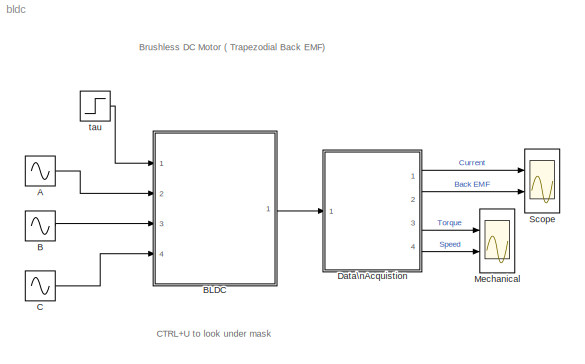
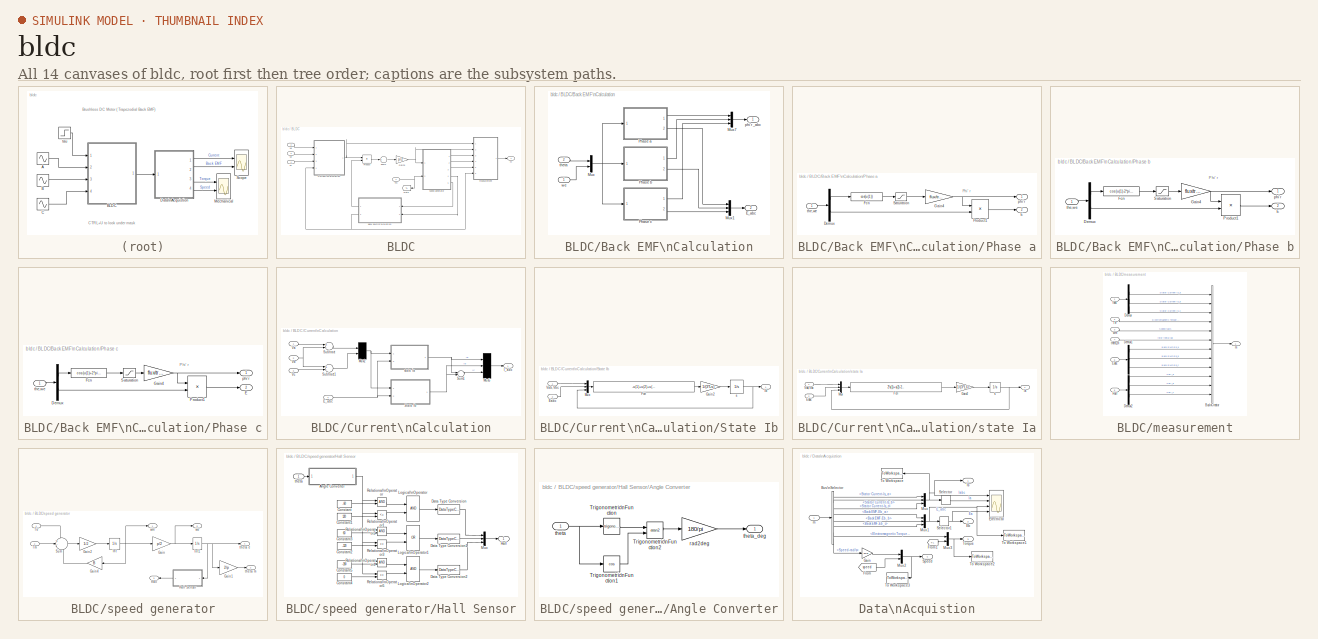
[diagram: thumbnail index - all 14 canvases of the model, root first then tree order]
MODEL bldc
KIND model
CONFIG InitFcn = Ts=10e-6;
BLOCK [Sin] A
  Amplitude = 220*sqrt(2)
  Bias = 0
  Frequency = 2*pi*50
  Offset = 0
  Phase = 0
  Ports = [0, 1]
  SampleTime = Ts
  Samples = 10
BLOCK [Sin] B
  Amplitude = 220*sqrt(2)
  Bias = 0
  Frequency = 2*pi*50
  Offset = 0
  Phase = -2*pi/3
  Ports = [0, 1]
  SampleTime = Ts
  Samples = 10
BLOCK [SubSystem] BLDC
  FunctionWithSeparateData = off
  MaskCallbackString = |||||
  MaskDescription = Brushless DC Motor inducing trapezoidal Back EMF
  MaskDisplay = fprintf('BLDC')
  MaskEnableString = on,on,on,on,on,on
  MaskHideContents = off
  MaskIconFrame = on
  MaskIconOpaque = off
  MaskIconRotate = none
  MaskIconUnits = autoscale
  MaskInitialization = trap=0.5;
  MaskPortRotate = default
  MaskPromptString = Resistance - Rs [ohms] :|Inductance - Ls [H] :|Flux - [wb]|Rotor Inertia - J [kg-m^2]|Friction Coefficient - B :|No: poles of Motor :
  MaskStyleString = edit,edit,edit,edit,edit,edit
  MaskTabNameString = ,,,,,
  MaskToolTipString = on,on,on,on,on,on
  MaskTunableValueString = on,on,on,on,on,on
  MaskType = Brushless DC Motor :
  MaskValueString = 1.43|9.4e-3|0.2158|1.5e-3|2e-3|4
  MaskVarAliasString = ,,,,,
  MaskVariables = Rs=@1;Ls=@2;flux=@3;J=@4;B=@5;p=@6;
  MaskVisibilityString = on,on,on,on,on,on
  MinAlgLoopOccurrences = off
  Opaque = off
  Ports = [4, 1]
  PropExecContextOutsideSubsystem = off
  RTWSystemCode = Auto
  RequestExecContextInheritance = off
BLOCK [SubSystem] BLDC/Back EMF\nCalculation
  FunctionWithSeparateData = off
  MaskHideContents = off
  MinAlgLoopOccurrences = off
  Opaque = off
  Ports = [2, 2]
  PropExecContextOutsideSubsystem = off
  RTWSystemCode = Auto
  RequestExecContextInheritance = off
BLOCK [Outport] BLDC/Back EMF\nCalculation/E_abc
  IconDisplay = Port number
  Port = 2
BLOCK [Mux] BLDC/Back EMF\nCalculation/Mux
  DisplayOption = bar
  Inputs = 2
  Ports = [2, 1]
BLOCK [Mux] BLDC/Back EMF\nCalculation/Mux1
  DisplayOption = bar
  Inputs = 3
  Ports = [3, 1]
BLOCK [Mux] BLDC/Back EMF\nCalculation/Mux7
  DisplayOption = bar
  Inputs = 3
  Ports = [3, 1]
BLOCK [SubSystem] BLDC/Back EMF\nCalculation/Phase a
  FunctionWithSeparateData = off
  MaskHideContents = off
  MinAlgLoopOccurrences = off
  Opaque = off
  Ports = [1, 2]
  PropExecContextOutsideSubsystem = off
  RTWSystemCode = Auto
  RequestExecContextInheritance = off
BLOCK [Demux] BLDC/Back EMF\nCalculation/Phase a/Demux
  Outputs = 2
  Ports = [1, 2]
BLOCK [Outport] BLDC/Back EMF\nCalculation/Phase a/E
  IconDisplay = Port number
  Port = 2
BLOCK [Fcn] BLDC/Back EMF\nCalculation/Phase a/Fcn
  Expr = cos(u(1))
BLOCK [Gain] BLDC/Back EMF\nCalculation/Phase a/Gain4
  Gain = flux/trap
BLOCK [Product] BLDC/Back EMF\nCalculation/Phase a/Product1
  InputSameDT = off
  Ports = [2, 1]
  RndMeth = Floor
BLOCK [Saturate] BLDC/Back EMF\nCalculation/Phase a/Saturation
  LowerLimit = -trap
  UpperLimit = trap
BLOCK [Outport] BLDC/Back EMF\nCalculation/Phase a/phi'r
  IconDisplay = Port number
BLOCK [Inport] BLDC/Back EMF\nCalculation/Phase a/the,we
  IconDisplay = Port number
BLOCK [SubSystem] BLDC/Back EMF\nCalculation/Phase b
  FunctionWithSeparateData = off
  MaskHideContents = off
  MinAlgLoopOccurrences = off
  Opaque = off
  Ports = [1, 2]
  PropExecContextOutsideSubsystem = off
  RTWSystemCode = Auto
  RequestExecContextInheritance = off
BLOCK [Demux] BLDC/Back EMF\nCalculation/Phase b/Demux
  Outputs = 2
  Ports = [1, 2]
BLOCK [Outport] BLDC/Back EMF\nCalculation/Phase b/E
  IconDisplay = Port number
  Port = 2
BLOCK [Fcn] BLDC/Back EMF\nCalculation/Phase b/Fcn
  Expr = cos(u(1)-2*pi/3)
BLOCK [Gain] BLDC/Back EMF\nCalculation/Phase b/Gain4
  Gain = flux/trap
BLOCK [Product] BLDC/Back EMF\nCalculation/Phase b/Product1
  InputSameDT = off
  Ports = [2, 1]
  RndMeth = Floor
BLOCK [Saturate] BLDC/Back EMF\nCalculation/Phase b/Saturation
  LowerLimit = -trap
  UpperLimit = trap
BLOCK [Outport] BLDC/Back EMF\nCalculation/Phase b/phi'r
  IconDisplay = Port number
BLOCK [Inport] BLDC/Back EMF\nCalculation/Phase b/the,we
  IconDisplay = Port number
BLOCK [SubSystem] BLDC/Back EMF\nCalculation/Phase c
  FunctionWithSeparateData = off
  MaskHideContents = off
  MinAlgLoopOccurrences = off
  Opaque = off
  Ports = [1, 2]
  PropExecContextOutsideSubsystem = off
  RTWSystemCode = Auto
  RequestExecContextInheritance = off
BLOCK [Demux] BLDC/Back EMF\nCalculation/Phase c/Demux
  Outputs = 2
  Ports = [1, 2]
BLOCK [Outport] BLDC/Back EMF\nCalculation/Phase c/E
  IconDisplay = Port number
  Port = 2
BLOCK [Fcn] BLDC/Back EMF\nCalculation/Phase c/Fcn
  Expr = cos(u(1)+2*pi/3)
BLOCK [Gain] BLDC/Back EMF\nCalculation/Phase c/Gain4
  Gain = flux/trap
BLOCK [Product] BLDC/Back EMF\nCalculation/Phase c/Product1
  InputSameDT = off
  Ports = [2, 1]
  RndMeth = Floor
BLOCK [Saturate] BLDC/Back EMF\nCalculation/Phase c/Saturation
  LowerLimit = -trap
  UpperLimit = trap
BLOCK [Outport] BLDC/Back EMF\nCalculation/Phase c/phi'r
  IconDisplay = Port number
BLOCK [Inport] BLDC/Back EMF\nCalculation/Phase c/the,we
  IconDisplay = Port number
BLOCK [Outport] BLDC/Back EMF\nCalculation/phi'r _abc
  IconDisplay = Port number
BLOCK [Inport] BLDC/Back EMF\nCalculation/theta
  IconDisplay = Port number
  Port = 2
BLOCK [Inport] BLDC/Back EMF\nCalculation/we
  IconDisplay = Port number
BLOCK [SubSystem] BLDC/Current\nCalculation
  FunctionWithSeparateData = off
  MaskHideContents = off
  MinAlgLoopOccurrences = off
  Opaque = off
  Ports = [4, 1]
  PropExecContextOutsideSubsystem = off
  RTWSystemCode = Auto
  RequestExecContextInheritance = off
BLOCK [Inport] BLDC/Current\nCalculation/E_abc
  IconDisplay = Port number
  Port = 4
BLOCK [Outport] BLDC/Current\nCalculation/I_abc
  IconDisplay = Port number
BLOCK [Mux] BLDC/Current\nCalculation/Mux2
  DisplayOption = signals
  Inputs = 2
  Ports = [2, 1]
BLOCK [Mux] BLDC/Current\nCalculation/Mux5
  DisplayOption = signals
  Inputs = 3
  Ports = [3, 1]
BLOCK [SubSystem] BLDC/Current\nCalculation/State Ib
  FunctionWithSeparateData = off
  MaskHideContents = off
  MinAlgLoopOccurrences = off
  Opaque = off
  Ports = [2, 1]
  PropExecContextOutsideSubsystem = off
  RTWSystemCode = Auto
  RequestExecContextInheritance = off
BLOCK [Inport] BLDC/Current\nCalculation/State Ib/Eabc
  IconDisplay = Port number
  Port = 2
BLOCK [Fcn] BLDC/Current\nCalculation/State Ib/Fcn
  Expr = -u(1)+u(2)+u(3)-2*u(4)+u(5)-3*Rs*u(6)
BLOCK [Gain] BLDC/Current\nCalculation/State Ib/Gain2
  Gain = 1/(3*Ls)
BLOCK [Outport] BLDC/Current\nCalculation/State Ib/Ib
  IconDisplay = Port number
BLOCK [Mux] BLDC/Current\nCalculation/State Ib/Mux
  DisplayOption = bar
  Inputs = 3
  Ports = [3, 1]
BLOCK [Inport] BLDC/Current\nCalculation/State Ib/Vab,Vbc
  IconDisplay = Port number
BLOCK [Integrator] BLDC/Current\nCalculation/State Ib/s 
  Ports = [1, 1]
BLOCK [Sum] BLDC/Current\nCalculation/Subtract
  InputSameDT = off
  Inputs = +-
  OutDataType = fixdt(1, 16)
  OutDataTypeMode = Inherit via internal rule
  OutDataTypeStr = Inherit: Inherit via internal rule
  OutScaling = 2^-10
  Ports = [2, 1]
  SaturateOnIntegerOverflow = off
BLOCK [Sum] BLDC/Current\nCalculation/Subtract1
  InputSameDT = off
  Inputs = +-
  OutDataType = fixdt(1, 16)
  OutDataTypeMode = Inherit via internal rule
  OutDataTypeStr = Inherit: Inherit via internal rule
  OutScaling = 2^-10
  Ports = [2, 1]
  SaturateOnIntegerOverflow = off
BLOCK [Sum] BLDC/Current\nCalculation/Sum1
  InputSameDT = off
  Inputs = --
  OutDataTypeMode = Inherit via internal rule
  OutDataTypeStr = Inherit: Inherit via internal rule
  Ports = [2, 1]
BLOCK [Inport] BLDC/Current\nCalculation/Va
  IconDisplay = Port number
BLOCK [Inport] BLDC/Current\nCalculation/Vb
  IconDisplay = Port number
  Port = 2
BLOCK [Inport] BLDC/Current\nCalculation/Vc
  IconDisplay = Port number
  Port = 3
BLOCK [SubSystem] BLDC/Current\nCalculation/state Ia
  FunctionWithSeparateData = off
  MaskHideContents = off
  MinAlgLoopOccurrences = off
  Opaque = off
  Ports = [2, 1]
  PropExecContextOutsideSubsystem = off
  RTWSystemCode = Auto
  RequestExecContextInheritance = off
BLOCK [Inport] BLDC/Current\nCalculation/state Ia/Eabc
  IconDisplay = Port number
  Port = 2
BLOCK [Fcn] BLDC/Current\nCalculation/state Ia/Fcn
  Expr = 2*u(1)+u(2)-2*u(3)+u(4)+u(5)-3*Rs*u(6)
BLOCK [Gain] BLDC/Current\nCalculation/state Ia/Gain2
  Gain = 1/(3*Ls)
BLOCK [Outport] BLDC/Current\nCalculation/state Ia/Ia
  IconDisplay = Port number
BLOCK [Mux] BLDC/Current\nCalculation/state Ia/Mux
  DisplayOption = bar
  Inputs = 3
  Ports = [3, 1]
BLOCK [Inport] BLDC/Current\nCalculation/state Ia/Vab,Vbc
  IconDisplay = Port number
BLOCK [Integrator] BLDC/Current\nCalculation/state Ia/s 
  Ports = [1, 1]
BLOCK [Gain] BLDC/Gain3
  Gain = p/2
BLOCK [Goto] BLDC/Goto
  GotoTag = TL
  TagVisibility = global
BLOCK [Product] BLDC/Product
  InputSameDT = off
  Ports = [2, 1]
  RndMeth = Floor
BLOCK [Sum] BLDC/Sum2
  InputSameDT = off
  Inputs = +
  OutDataTypeMode = Inherit via internal rule
  OutDataTypeStr = Inherit: Inherit via internal rule
  Ports = [1, 1]
BLOCK [Inport] BLDC/Tm
  IconDisplay = Port number
BLOCK [Inport] BLDC/Va
  IconDisplay = Port number
  Port = 2
BLOCK [Inport] BLDC/Vb
  IconDisplay = Port number
  Port = 3
BLOCK [Inport] BLDC/Vc
  IconDisplay = Port number
  Port = 4
BLOCK [Outport] BLDC/m
  IconDisplay = Port number
BLOCK [SubSystem] BLDC/measurement
  FunctionWithSeparateData = off
  MaskHideContents = off
  MinAlgLoopOccurrences = off
  Opaque = off
  Ports = [6, 1]
  PropExecContextOutsideSubsystem = off
  RTWSystemCode = Auto
  RequestExecContextInheritance = off
BLOCK [BusCreator] BLDC/measurement/Bus\nCreator
  DisplayOption = bar
  Inputs = 12
  Ports = [12, 1]
BLOCK [Demux] BLDC/measurement/Demux
  DisplayOption = bar
  Outputs = 3
  Ports = [1, 3]
BLOCK [Demux] BLDC/measurement/Demux1
  DisplayOption = bar
  Outputs = 3
  Ports = [1, 3]
BLOCK [Demux] BLDC/measurement/Demux2
  DisplayOption = bar
  Outputs = 3
  Ports = [1, 3]
BLOCK [Inport] BLDC/measurement/Eabc
  IconDisplay = Port number
  OutDataType = fixdt(1, 16)
  OutScaling = 2^0
  Port = 6
BLOCK [Inport] BLDC/measurement/Hall
  IconDisplay = Port number
  OutDataType = fixdt(1, 16)
  OutScaling = 2^0
  Port = 5
BLOCK [Inport] BLDC/measurement/Iabc
  IconDisplay = Port number
  OutDataType = fixdt(1, 16)
  OutScaling = 2^0
BLOCK [Inport] BLDC/measurement/Te
  IconDisplay = Port number
  OutDataType = fixdt(1, 16)
  OutScaling = 2^0
  Port = 2
BLOCK [Outport] BLDC/measurement/m
  IconDisplay = Port number
  OutDataType = fixdt(1, 16)
  OutScaling = 2^0
BLOCK [Inport] BLDC/measurement/theta_m
  IconDisplay = Port number
  OutDataType = fixdt(1, 16)
  OutScaling = 2^0
  Port = 4
BLOCK [Inport] BLDC/measurement/wm
  IconDisplay = Port number
  OutDataType = fixdt(1, 16)
  OutScaling = 2^0
  Port = 3
BLOCK [SubSystem] BLDC/speed generator
  FunctionWithSeparateData = off
  MaskHideContents = off
  MinAlgLoopOccurrences = off
  Opaque = off
  Ports = [2, 5]
  PropExecContextOutsideSubsystem = off
  RTWSystemCode = Auto
  RequestExecContextInheritance = off
BLOCK [Gain] BLDC/speed generator/Gain
  Gain = p/2
BLOCK [Gain] BLDC/speed generator/Gain1
  Gain = 2/p
BLOCK [Gain] BLDC/speed generator/Gain2
  Gain = 1/J
BLOCK [Gain] BLDC/speed generator/Gain4
  Gain = B
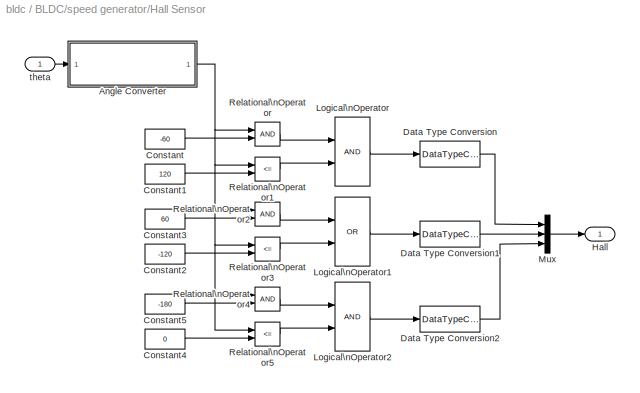
BLOCK [SubSystem] BLDC/speed generator/Hall Sensor
  FunctionWithSeparateData = off
  MaskHideContents = off
  MinAlgLoopOccurrences = off
  Opaque = off
  Ports = [1, 1]
  PropExecContextOutsideSubsystem = off
  RTWSystemCode = Auto
  RequestExecContextInheritance = off
BLOCK [SubSystem] BLDC/speed generator/Hall Sensor/Angle Converter
  FunctionWithSeparateData = off
  MaskHideContents = off
  MinAlgLoopOccurrences = off
  Opaque = off
  Ports = [1, 1]
  PropExecContextOutsideSubsystem = off
  RTWSystemCode = Auto
  RequestExecContextInheritance = off
BLOCK [Trigonometry] BLDC/speed generator/Hall Sensor/Angle Converter/Trigonometric\nFunction
  Ports = [1, 1]
BLOCK [Trigonometry] BLDC/speed generator/Hall Sensor/Angle Converter/Trigonometric\nFunction1
  Operator = cos
  Ports = [1, 1]
BLOCK [Trigonometry] BLDC/speed generator/Hall Sensor/Angle Converter/Trigonometric\nFunction2
  Operator = atan2
  Ports = [2, 1]
BLOCK [Gain] BLDC/speed generator/Hall Sensor/Angle Converter/rad2deg
  Gain = 180/pi
  OutDataType = fixdt(1, 16)
  OutDataTypeMode = Inherit via internal rule
  OutDataTypeStr = Inherit: Inherit via internal rule
  OutScaling = 2^0
  ParamDataTypeStr = Inherit: Inherit via internal rule
  ParameterDataType = fixdt(1, 16)
  ParameterDataTypeMode = Inherit via internal rule
  ParameterScaling = 2^0
  SaturateOnIntegerOverflow = off
BLOCK [Inport] BLDC/speed generator/Hall Sensor/Angle Converter/theta
  IconDisplay = Port number
  OutDataType = fixdt(1, 16)
  OutScaling = 2^0
BLOCK [Outport] BLDC/speed generator/Hall Sensor/Angle Converter/theta_deg
  IconDisplay = Port number
  OutDataType = fixdt(1, 16)
  OutScaling = 2^0
BLOCK [Constant] BLDC/speed generator/Hall Sensor/Constant
  OutDataType = fixdt(1, 16)
  OutScaling = 2^0
  Value = -60
BLOCK [Constant] BLDC/speed generator/Hall Sensor/Constant1
  OutDataType = fixdt(1, 16)
  OutScaling = 2^0
  Value = 120
BLOCK [Constant] BLDC/speed generator/Hall Sensor/Constant2
  OutDataType = fixdt(1, 16)
  OutScaling = 2^0
  Value = -120
BLOCK [Constant] BLDC/speed generator/Hall Sensor/Constant3
  OutDataType = fixdt(1, 16)
  OutScaling = 2^0
  Value = 60
BLOCK [Constant] BLDC/speed generator/Hall Sensor/Constant4
  OutDataType = fixdt(1, 16)
  OutScaling = 2^0
  Value = 0
BLOCK [Constant] BLDC/speed generator/Hall Sensor/Constant5
  OutDataType = fixdt(1, 16)
  OutScaling = 2^0
  Value = -180
BLOCK [DataTypeConversion] BLDC/speed generator/Hall Sensor/Data Type Conversion
  OutDataType = fixdt(1, 16)
  OutScaling = 2^0
  RndMeth = Floor
  SaturateOnIntegerOverflow = off
BLOCK [DataTypeConversion] BLDC/speed generator/Hall Sensor/Data Type Conversion1
  OutDataType = fixdt(1, 16)
  OutScaling = 2^0
  RndMeth = Floor
  SaturateOnIntegerOverflow = off
BLOCK [DataTypeConversion] BLDC/speed generator/Hall Sensor/Data Type Conversion2
  OutDataType = fixdt(1, 16)
  OutScaling = 2^0
  RndMeth = Floor
  SaturateOnIntegerOverflow = off
BLOCK [Outport] BLDC/speed generator/Hall Sensor/Hall
  IconDisplay = Port number
  OutDataType = fixdt(1, 16)
  OutScaling = 2^0
BLOCK [Logic] BLDC/speed generator/Hall Sensor/Logical\nOperator
  AllPortsSameDT = off
  LogicDataType = fixdt(0, 8)
  OutDataTypeMode = boolean
  OutDataTypeStr = boolean
  Ports = [2, 1]
BLOCK [Logic] BLDC/speed generator/Hall Sensor/Logical\nOperator1
  AllPortsSameDT = off
  LogicDataType = fixdt(0, 8)
  Operator = OR
  OutDataTypeMode = boolean
  OutDataTypeStr = boolean
  Ports = [2, 1]
BLOCK [Logic] BLDC/speed generator/Hall Sensor/Logical\nOperator2
  AllPortsSameDT = off
  LogicDataType = fixdt(0, 8)
  OutDataTypeMode = boolean
  OutDataTypeStr = boolean
  Ports = [2, 1]
BLOCK [Mux] BLDC/speed generator/Hall Sensor/Mux
  DisplayOption = bar
  Inputs = 3
  Ports = [3, 1]
BLOCK [RelationalOperator] BLDC/speed generator/Hall Sensor/Relational\nOperator
  InputSameDT = off
  LogicDataType = fixdt(0, 8)
  LogicOutDataTypeMode = boolean
  OutDataTypeStr = boolean
BLOCK [RelationalOperator] BLDC/speed generator/Hall Sensor/Relational\nOperator1
  InputSameDT = off
  LogicDataType = fixdt(0, 8)
  LogicOutDataTypeMode = boolean
  Operator = <=
  OutDataTypeStr = boolean
BLOCK [RelationalOperator] BLDC/speed generator/Hall Sensor/Relational\nOperator2
  InputSameDT = off
  LogicDataType = fixdt(0, 8)
  LogicOutDataTypeMode = boolean
  OutDataTypeStr = boolean
BLOCK [RelationalOperator] BLDC/speed generator/Hall Sensor/Relational\nOperator3
  InputSameDT = off
  LogicDataType = fixdt(0, 8)
  LogicOutDataTypeMode = boolean
  Operator = <=
  OutDataTypeStr = boolean
BLOCK [RelationalOperator] BLDC/speed generator/Hall Sensor/Relational\nOperator4
  InputSameDT = off
  LogicDataType = fixdt(0, 8)
  LogicOutDataTypeMode = boolean
  OutDataTypeStr = boolean
BLOCK [RelationalOperator] BLDC/speed generator/Hall Sensor/Relational\nOperator5
  InputSameDT = off
  LogicDataType = fixdt(0, 8)
  LogicOutDataTypeMode = boolean
  Operator = <=
  OutDataTypeStr = boolean
BLOCK [Inport] BLDC/speed generator/Hall Sensor/theta
  IconDisplay = Port number
  OutDataType = fixdt(1, 16)
  OutScaling = 2^0
BLOCK [Integrator] BLDC/speed generator/Int
  Ports = [1, 1]
BLOCK [Integrator] BLDC/speed generator/Int1
  Ports = [1, 1]
BLOCK [Sum] BLDC/speed generator/Sum
  IconShape = round
  Inputs = +--
  Ports = [3, 1]
BLOCK [Inport] BLDC/speed generator/Te
  IconDisplay = Port number
BLOCK [Inport] BLDC/speed generator/Tm
  IconDisplay = Port number
  Port = 2
BLOCK [Outport] BLDC/speed generator/hall
  IconDisplay = Port number
  Port = 3
BLOCK [Outport] BLDC/speed generator/theta e
  IconDisplay = Port number
  Port = 4
BLOCK [Outport] BLDC/speed generator/theta m
  IconDisplay = Port number
  Port = 2
BLOCK [Outport] BLDC/speed generator/we
  IconDisplay = Port number
  Port = 5
BLOCK [Outport] BLDC/speed generator/wm
  IconDisplay = Port number
BLOCK [Sin] C
  Amplitude = 220*sqrt(2)
  Bias = 0
  Frequency = 2*pi*50
  Offset = 0
  Phase = 2*pi/3
  Ports = [0, 1]
  SampleTime = Ts
  Samples = 10
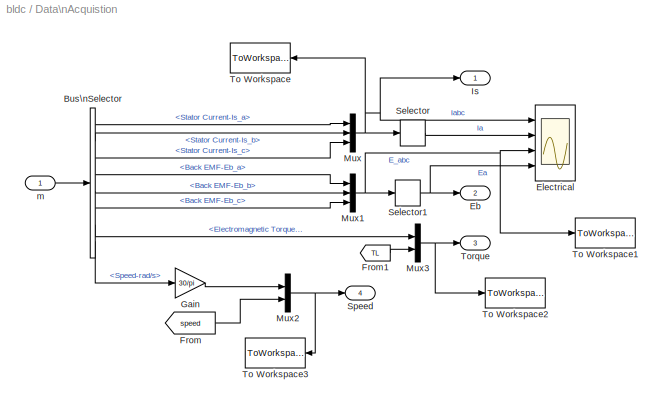
BLOCK [SubSystem] Data\nAcquistion
  FunctionWithSeparateData = off
  MaskHideContents = off
  MinAlgLoopOccurrences = off
  Opaque = off
  Ports = [1, 4]
  PropExecContextOutsideSubsystem = off
  RTWSystemCode = Auto
  RequestExecContextInheritance = off
BLOCK [BusSelector] Data\nAcquistion/Bus\nSelector
  OutputSignals = Stator Current-Is_a,Stator Current-Is_b,Stator Current-Is_c,Back EMF-Eb_a,Back EMF-Eb_b,Back EMF-Eb_c,Electromagnetic Torque-Nm,Speed-rad/s
  Ports = [1, 8]
BLOCK [Outport] Data\nAcquistion/Eb
  IconDisplay = Port number
  Port = 2
BLOCK [Scope] Data\nAcquistion/Electrical
  DataFormat = StructureWithTime
  Floating = off
  LimitDataPoints = off
  NumInputPorts = 4
  Ports = [4]
  SampleTime = 0
  SaveName = ScopeData3
  TimeRange = 1
  YMax = 40~30~100~100
  YMin = -40~-20~-100~-100
  ZoomMode = yonly
BLOCK [From] Data\nAcquistion/From
  GotoTag = speed
BLOCK [From] Data\nAcquistion/From1
  GotoTag = TL
  TagVisibility = global
BLOCK [Gain] Data\nAcquistion/Gain
  Gain = 30/pi
  OutDataType = fixdt(1, 16)
  OutDataTypeMode = Inherit via internal rule
  OutDataTypeStr = Inherit: Inherit via internal rule
  OutScaling = 2^0
  ParamDataTypeStr = Inherit: Inherit via internal rule
  ParameterDataType = fixdt(1, 16)
  ParameterDataTypeMode = Inherit via internal rule
  ParameterScaling = 2^0
  SaturateOnIntegerOverflow = off
BLOCK [Outport] Data\nAcquistion/Is
  IconDisplay = Port number
BLOCK [Mux] Data\nAcquistion/Mux
  DisplayOption = bar
  Inputs = 3
  Ports = [3, 1]
BLOCK [Mux] Data\nAcquistion/Mux1
  DisplayOption = bar
  Inputs = 3
  Ports = [3, 1]
BLOCK [Mux] Data\nAcquistion/Mux2
  DisplayOption = bar
  Inputs = 2
  Ports = [2, 1]
BLOCK [Mux] Data\nAcquistion/Mux3
  DisplayOption = bar
  Inputs = 2
  Ports = [2, 1]
BLOCK [Selector] Data\nAcquistion/Selector
  IndexOptions = Index vector (dialog)
  Indices = [1 ]
  InputPortWidth = 3
  OutputSizes = 1
  Ports = [1, 1]
BLOCK [Selector] Data\nAcquistion/Selector1
  IndexOptions = Index vector (dialog)
  Indices = [1 ]
  InputPortWidth = 3
  OutputSizes = 1
  Ports = [1, 1]
BLOCK [Outport] Data\nAcquistion/Speed
  IconDisplay = Port number
  Port = 4
BLOCK [ToWorkspace] Data\nAcquistion/To Workspace
  MaxDataPoints = inf
  SampleTime = Ts
  SaveFormat = Array
  VariableName = Iabc_pi
BLOCK [ToWorkspace] Data\nAcquistion/To Workspace1
  MaxDataPoints = inf
  SampleTime = Ts
  SaveFormat = Array
  VariableName = Eabc_pi
BLOCK [ToWorkspace] Data\nAcquistion/To Workspace2
  MaxDataPoints = inf
  SampleTime = Ts
  SaveFormat = Array
  VariableName = Te_pi
BLOCK [ToWorkspace] Data\nAcquistion/To Workspace3
  MaxDataPoints = inf
  SampleTime = Ts
  SaveFormat = Array
  VariableName = N_pi
BLOCK [Outport] Data\nAcquistion/Torque
  IconDisplay = Port number
  Port = 3
BLOCK [Inport] Data\nAcquistion/m
  IconDisplay = Port number
BLOCK [Scope] Mechanical
  DataFormat = StructureWithTime
  Floating = off
  LimitDataPoints = off
  NumInputPorts = 2
  Ports = [2]
  SampleTime = 0
  SaveName = ScopeData1
  TimeRange = 1
  YMax = 50~2000
  YMin = -20~0
  ZoomMode = yonly
BLOCK [Scope] Scope
  DataFormat = StructureWithTime
  Floating = off
  LimitDataPoints = off
  NumInputPorts = 2
  Ports = [2]
  SampleTime = 0
  TimeRange = 1
  YMax = 150~100
  YMin = -100~-100
  ZoomMode = xonly
BLOCK [Step] tau
  After = 10
  SampleTime = 0
  Time = 0.5
ANNOTATION (root): Brushless DC Motor ( Trapezodial Back EMF)
ANNOTATION (root): CTRL+U to look under mask
ANNOTATION BLDC/Back EMF\nCalculation/Phase a: Phi' r
ANNOTATION BLDC/Back EMF\nCalculation/Phase b: Phi' r
ANNOTATION BLDC/Back EMF\nCalculation/Phase c: Phi' r
LINE A:1 -> BLDC:2
LINE B:1 -> BLDC:3
LINE BLDC/Back EMF\nCalculation/Mux1:1 -> BLDC/Back EMF\nCalculation/E_abc:1
LINE BLDC/Back EMF\nCalculation/Mux7:1 -> BLDC/Back EMF\nCalculation/phi'r _abc:1
NET BLDC/Back EMF\nCalculation/Mux:1 -> BLDC/Back EMF\nCalculation/Phase a:1, BLDC/Back EMF\nCalculation/Phase b:1, BLDC/Back EMF\nCalculation/Phase c:1
LINE BLDC/Back EMF\nCalculation/Phase a/Demux:1 -> BLDC/Back EMF\nCalculation/Phase a/Fcn:1
LINE BLDC/Back EMF\nCalculation/Phase a/Demux:2 -> BLDC/Back EMF\nCalculation/Phase a/Product1:2
LINE BLDC/Back EMF\nCalculation/Phase a/Fcn:1 -> BLDC/Back EMF\nCalculation/Phase a/Saturation:1
NET BLDC/Back EMF\nCalculation/Phase a/Gain4:1 -> BLDC/Back EMF\nCalculation/Phase a/Product1:1, BLDC/Back EMF\nCalculation/Phase a/phi'r:1
LINE BLDC/Back EMF\nCalculation/Phase a/Product1:1 -> BLDC/Back EMF\nCalculation/Phase a/E:1
LINE BLDC/Back EMF\nCalculation/Phase a/Saturation:1 -> BLDC/Back EMF\nCalculation/Phase a/Gain4:1
LINE BLDC/Back EMF\nCalculation/Phase a/the,we:1 -> BLDC/Back EMF\nCalculation/Phase a/Demux:1
LINE BLDC/Back EMF\nCalculation/Phase a:1 -> BLDC/Back EMF\nCalculation/Mux7:1
LINE BLDC/Back EMF\nCalculation/Phase a:2 -> BLDC/Back EMF\nCalculation/Mux1:1
LINE BLDC/Back EMF\nCalculation/Phase b/Demux:1 -> BLDC/Back EMF\nCalculation/Phase b/Fcn:1
LINE BLDC/Back EMF\nCalculation/Phase b/Demux:2 -> BLDC/Back EMF\nCalculation/Phase b/Product1:2
LINE BLDC/Back EMF\nCalculation/Phase b/Fcn:1 -> BLDC/Back EMF\nCalculation/Phase b/Saturation:1
NET BLDC/Back EMF\nCalculation/Phase b/Gain4:1 -> BLDC/Back EMF\nCalculation/Phase b/Product1:1, BLDC/Back EMF\nCalculation/Phase b/phi'r:1
LINE BLDC/Back EMF\nCalculation/Phase b/Product1:1 -> BLDC/Back EMF\nCalculation/Phase b/E:1
LINE BLDC/Back EMF\nCalculation/Phase b/Saturation:1 -> BLDC/Back EMF\nCalculation/Phase b/Gain4:1
LINE BLDC/Back EMF\nCalculation/Phase b/the,we:1 -> BLDC/Back EMF\nCalculation/Phase b/Demux:1
LINE BLDC/Back EMF\nCalculation/Phase b:1 -> BLDC/Back EMF\nCalculation/Mux7:2
LINE BLDC/Back EMF\nCalculation/Phase b:2 -> BLDC/Back EMF\nCalculation/Mux1:2
LINE BLDC/Back EMF\nCalculation/Phase c/Demux:1 -> BLDC/Back EMF\nCalculation/Phase c/Fcn:1
LINE BLDC/Back EMF\nCalculation/Phase c/Demux:2 -> BLDC/Back EMF\nCalculation/Phase c/Product1:2
LINE BLDC/Back EMF\nCalculation/Phase c/Fcn:1 -> BLDC/Back EMF\nCalculation/Phase c/Saturation:1
NET BLDC/Back EMF\nCalculation/Phase c/Gain4:1 -> BLDC/Back EMF\nCalculation/Phase c/Product1:1, BLDC/Back EMF\nCalculation/Phase c/phi'r:1
LINE BLDC/Back EMF\nCalculation/Phase c/Product1:1 -> BLDC/Back EMF\nCalculation/Phase c/E:1
LINE BLDC/Back EMF\nCalculation/Phase c/Saturation:1 -> BLDC/Back EMF\nCalculation/Phase c/Gain4:1
LINE BLDC/Back EMF\nCalculation/Phase c/the,we:1 -> BLDC/Back EMF\nCalculation/Phase c/Demux:1
LINE BLDC/Back EMF\nCalculation/Phase c:1 -> BLDC/Back EMF\nCalculation/Mux7:3
LINE BLDC/Back EMF\nCalculation/Phase c:2 -> BLDC/Back EMF\nCalculation/Mux1:3
LINE BLDC/Back EMF\nCalculation/theta:1 -> BLDC/Back EMF\nCalculation/Mux:1
LINE BLDC/Back EMF\nCalculation/we:1 -> BLDC/Back EMF\nCalculation/Mux:2
LINE BLDC/Back EMF\nCalculation:1 -> BLDC/Product:2
NET BLDC/Back EMF\nCalculation:2 -> BLDC/Current\nCalculation:4, BLDC/measurement:6
NET BLDC/Current\nCalculation/E_abc:1 -> BLDC/Current\nCalculation/State Ib:2, BLDC/Current\nCalculation/state Ia:2
NET BLDC/Current\nCalculation/Mux2:1 -> BLDC/Current\nCalculation/State Ib:1, BLDC/Current\nCalculation/state Ia:1
LINE BLDC/Current\nCalculation/Mux5:1 -> BLDC/Current\nCalculation/I_abc:1
LINE BLDC/Current\nCalculation/State Ib/Eabc:1 -> BLDC/Current\nCalculation/State Ib/Mux:2
LINE BLDC/Current\nCalculation/State Ib/Fcn:1 -> BLDC/Current\nCalculation/State Ib/Gain2:1
LINE BLDC/Current\nCalculation/State Ib/Gain2:1 -> BLDC/Current\nCalculation/State Ib/s :1
LINE BLDC/Current\nCalculation/State Ib/Mux:1 -> BLDC/Current\nCalculation/State Ib/Fcn:1
LINE BLDC/Current\nCalculation/State Ib/Vab,Vbc:1 -> BLDC/Current\nCalculation/State Ib/Mux:1
NET BLDC/Current\nCalculation/State Ib/s :1 -> BLDC/Current\nCalculation/State Ib/Ib:1, BLDC/Current\nCalculation/State Ib/Mux:3
NET BLDC/Current\nCalculation/State Ib:1 -> BLDC/Current\nCalculation/Mux5:2, BLDC/Current\nCalculation/Sum1:2
LINE BLDC/Current\nCalculation/Subtract1:1 -> BLDC/Current\nCalculation/Mux2:2
LINE BLDC/Current\nCalculation/Subtract:1 -> BLDC/Current\nCalculation/Mux2:1
LINE BLDC/Current\nCalculation/Sum1:1 -> BLDC/Current\nCalculation/Mux5:3
LINE BLDC/Current\nCalculation/Va:1 -> BLDC/Current\nCalculation/Subtract:1
NET BLDC/Current\nCalculation/Vb:1 -> BLDC/Current\nCalculation/Subtract1:1, BLDC/Current\nCalculation/Subtract:2
LINE BLDC/Current\nCalculation/Vc:1 -> BLDC/Current\nCalculation/Subtract1:2
LINE BLDC/Current\nCalculation/state Ia/Eabc:1 -> BLDC/Current\nCalculation/state Ia/Mux:2
LINE BLDC/Current\nCalculation/state Ia/Fcn:1 -> BLDC/Current\nCalculation/state Ia/Gain2:1
LINE BLDC/Current\nCalculation/state Ia/Gain2:1 -> BLDC/Current\nCalculation/state Ia/s :1
LINE BLDC/Current\nCalculation/state Ia/Mux:1 -> BLDC/Current\nCalculation/state Ia/Fcn:1
LINE BLDC/Current\nCalculation/state Ia/Vab,Vbc:1 -> BLDC/Current\nCalculation/state Ia/Mux:1
NET BLDC/Current\nCalculation/state Ia/s :1 -> BLDC/Current\nCalculation/state Ia/Ia:1, BLDC/Current\nCalculation/state Ia/Mux:3
NET BLDC/Current\nCalculation/state Ia:1 -> BLDC/Current\nCalculation/Mux5:1, BLDC/Current\nCalculation/Sum1:1
NET BLDC/Current\nCalculation:1 -> BLDC/Product:1, BLDC/measurement:1
NET BLDC/Gain3:1 -> BLDC/measurement:2, BLDC/speed generator:1
LINE BLDC/Product:1 -> BLDC/Sum2:1
LINE BLDC/Sum2:1 -> BLDC/Gain3:1
NET BLDC/Tm:1 -> BLDC/Goto:1, BLDC/speed generator:2
LINE BLDC/Va:1 -> BLDC/Current\nCalculation:1
LINE BLDC/Vb:1 -> BLDC/Current\nCalculation:2
LINE BLDC/Vc:1 -> BLDC/Current\nCalculation:3
LINE BLDC/measurement/Bus\nCreator:1 -> BLDC/measurement/m:1
LINE BLDC/measurement/Demux1:1 -> BLDC/measurement/Bus\nCreator:7
LINE BLDC/measurement/Demux1:2 -> BLDC/measurement/Bus\nCreator:8
LINE BLDC/measurement/Demux1:3 -> BLDC/measurement/Bus\nCreator:9
LINE BLDC/measurement/Demux2:1 -> BLDC/measurement/Bus\nCreator:10
LINE BLDC/measurement/Demux2:2 -> BLDC/measurement/Bus\nCreator:11
LINE BLDC/measurement/Demux2:3 -> BLDC/measurement/Bus\nCreator:12
LINE BLDC/measurement/Demux:1 -> BLDC/measurement/Bus\nCreator:1
LINE BLDC/measurement/Demux:2 -> BLDC/measurement/Bus\nCreator:2
LINE BLDC/measurement/Demux:3 -> BLDC/measurement/Bus\nCreator:3
LINE BLDC/measurement/Eabc:1 -> BLDC/measurement/Demux1:1
LINE BLDC/measurement/Hall:1 -> BLDC/measurement/Demux2:1
LINE BLDC/measurement/Iabc:1 -> BLDC/measurement/Demux:1
LINE BLDC/measurement/Te:1 -> BLDC/measurement/Bus\nCreator:4
LINE BLDC/measurement/theta_m:1 -> BLDC/measurement/Bus\nCreator:6
LINE BLDC/measurement/wm:1 -> BLDC/measurement/Bus\nCreator:5
LINE BLDC/measurement:1 -> BLDC/m:1
LINE BLDC/speed generator/Gain1:1 -> BLDC/speed generator/theta m:1
LINE BLDC/speed generator/Gain2:1 -> BLDC/speed generator/Int:1
LINE BLDC/speed generator/Gain4:1 -> BLDC/speed generator/Sum:3
NET BLDC/speed generator/Gain:1 -> BLDC/speed generator/Int1:1, BLDC/speed generator/we:1
LINE BLDC/speed generator/Hall Sensor/Angle Converter/Trigonometric\nFunction1:1 -> BLDC/speed generator/Hall Sensor/Angle Converter/Trigonometric\nFunction2:2
LINE BLDC/speed generator/Hall Sensor/Angle Converter/Trigonometric\nFunction2:1 -> BLDC/speed generator/Hall Sensor/Angle Converter/rad2deg:1
LINE BLDC/speed generator/Hall Sensor/Angle Converter/Trigonometric\nFunction:1 -> BLDC/speed generator/Hall Sensor/Angle Converter/Trigonometric\nFunction2:1
LINE BLDC/speed generator/Hall Sensor/Angle Converter/rad2deg:1 -> BLDC/speed generator/Hall Sensor/Angle Converter/theta_deg:1
NET BLDC/speed generator/Hall Sensor/Angle Converter/theta:1 -> BLDC/speed generator/Hall Sensor/Angle Converter/Trigonometric\nFunction1:1, BLDC/speed generator/Hall Sensor/Angle Converter/Trigonometric\nFunction:1
NET BLDC/speed generator/Hall Sensor/Angle Converter:1 -> BLDC/speed generator/Hall Sensor/Relational\nOperator1:1, BLDC/speed generator/Hall Sensor/Relational\nOperator2:1, BLDC/speed generator/Hall Sensor/Relational\nOperator3:1, BLDC/speed generator/Hall Sensor/Relational\nOperator4:1, BLDC/speed generator/Hall Sensor/Relational\nOperator5:1, BLDC/speed generator/Hall Sensor/Relational\nOperator:1
LINE BLDC/speed generator/Hall Sensor/Constant1:1 -> BLDC/speed generator/Hall Sensor/Relational\nOperator1:2
LINE BLDC/speed generator/Hall Sensor/Constant2:1 -> BLDC/speed generator/Hall Sensor/Relational\nOperator3:2
LINE BLDC/speed generator/Hall Sensor/Constant3:1 -> BLDC/speed generator/Hall Sensor/Relational\nOperator2:2
LINE BLDC/speed generator/Hall Sensor/Constant4:1 -> BLDC/speed generator/Hall Sensor/Relational\nOperator5:2
LINE BLDC/speed generator/Hall Sensor/Constant5:1 -> BLDC/speed generator/Hall Sensor/Relational\nOperator4:2
LINE BLDC/speed generator/Hall Sensor/Constant:1 -> BLDC/speed generator/Hall Sensor/Relational\nOperator:2
LINE BLDC/speed generator/Hall Sensor/Data Type Conversion1:1 -> BLDC/speed generator/Hall Sensor/Mux:2
LINE BLDC/speed generator/Hall Sensor/Data Type Conversion2:1 -> BLDC/speed generator/Hall Sensor/Mux:3
LINE BLDC/speed generator/Hall Sensor/Data Type Conversion:1 -> BLDC/speed generator/Hall Sensor/Mux:1
LINE BLDC/speed generator/Hall Sensor/Logical\nOperator1:1 -> BLDC/speed generator/Hall Sensor/Data Type Conversion1:1
LINE BLDC/speed generator/Hall Sensor/Logical\nOperator2:1 -> BLDC/speed generator/Hall Sensor/Data Type Conversion2:1
LINE BLDC/speed generator/Hall Sensor/Logical\nOperator:1 -> BLDC/speed generator/Hall Sensor/Data Type Conversion:1
LINE BLDC/speed generator/Hall Sensor/Mux:1 -> BLDC/speed generator/Hall Sensor/Hall:1
LINE BLDC/speed generator/Hall Sensor/Relational\nOperator1:1 -> BLDC/speed generator/Hall Sensor/Logical\nOperator:2
LINE BLDC/speed generator/Hall Sensor/Relational\nOperator2:1 -> BLDC/speed generator/Hall Sensor/Logical\nOperator1:1
LINE BLDC/speed generator/Hall Sensor/Relational\nOperator3:1 -> BLDC/speed generator/Hall Sensor/Logical\nOperator1:2
LINE BLDC/speed generator/Hall Sensor/Relational\nOperator4:1 -> BLDC/speed generator/Hall Sensor/Logical\nOperator2:1
LINE BLDC/speed generator/Hall Sensor/Relational\nOperator5:1 -> BLDC/speed generator/Hall Sensor/Logical\nOperator2:2
LINE BLDC/speed generator/Hall Sensor/Relational\nOperator:1 -> BLDC/speed generator/Hall Sensor/Logical\nOperator:1
LINE BLDC/speed generator/Hall Sensor/theta:1 -> BLDC/speed generator/Hall Sensor/Angle Converter:1
LINE BLDC/speed generator/Hall Sensor:1 -> BLDC/speed generator/hall:1
NET BLDC/speed generator/Int1:1 -> BLDC/speed generator/Gain1:1, BLDC/speed generator/Hall Sensor:1, BLDC/speed generator/theta e:1
NET BLDC/speed generator/Int:1 -> BLDC/speed generator/Gain4:1, BLDC/speed generator/Gain:1, BLDC/speed generator/wm:1
LINE BLDC/speed generator/Sum:1 -> BLDC/speed generator/Gain2:1
LINE BLDC/speed generator/Te:1 -> BLDC/speed generator/Sum:1
LINE BLDC/speed generator/Tm:1 -> BLDC/speed generator/Sum:2
LINE BLDC/speed generator:1 -> BLDC/measurement:3
LINE BLDC/speed generator:2 -> BLDC/measurement:4
LINE BLDC/speed generator:3 -> BLDC/measurement:5
LINE BLDC/speed generator:4 -> BLDC/Back EMF\nCalculation:2
LINE BLDC/speed generator:5 -> BLDC/Back EMF\nCalculation:1
LINE BLDC:1 -> Data\nAcquistion:1
LINE C:1 -> BLDC:4
LINE Data\nAcquistion/Bus\nSelector:1 -> Data\nAcquistion/Mux:1
LINE Data\nAcquistion/Bus\nSelector:2 -> Data\nAcquistion/Mux:2
LINE Data\nAcquistion/Bus\nSelector:3 -> Data\nAcquistion/Mux:3
LINE Data\nAcquistion/Bus\nSelector:4 -> Data\nAcquistion/Mux1:1
LINE Data\nAcquistion/Bus\nSelector:5 -> Data\nAcquistion/Mux1:2
LINE Data\nAcquistion/Bus\nSelector:6 -> Data\nAcquistion/Mux1:3
LINE Data\nAcquistion/Bus\nSelector:7 -> Data\nAcquistion/Mux3:1
LINE Data\nAcquistion/Bus\nSelector:8 -> Data\nAcquistion/Gain:1
LINE Data\nAcquistion/From1:1 -> Data\nAcquistion/Mux3:2
LINE Data\nAcquistion/From:1 -> Data\nAcquistion/Mux2:2
LINE Data\nAcquistion/Gain:1 -> Data\nAcquistion/Mux2:1
NET Data\nAcquistion/Mux1:1 -> Data\nAcquistion/Electrical:3, Data\nAcquistion/Selector1:1, Data\nAcquistion/To Workspace1:1
NET Data\nAcquistion/Mux2:1 -> Data\nAcquistion/Speed:1, Data\nAcquistion/To Workspace3:1
NET Data\nAcquistion/Mux3:1 -> Data\nAcquistion/To Workspace2:1, Data\nAcquistion/Torque:1
NET Data\nAcquistion/Mux:1 -> Data\nAcquistion/Electrical:1, Data\nAcquistion/Is:1, Data\nAcquistion/Selector:1, Data\nAcquistion/To Workspace:1
NET Data\nAcquistion/Selector1:1 -> Data\nAcquistion/Eb:1, Data\nAcquistion/Electrical:4
LINE Data\nAcquistion/Selector:1 -> Data\nAcquistion/Electrical:2
LINE Data\nAcquistion/m:1 -> Data\nAcquistion/Bus\nSelector:1
LINE Data\nAcquistion:1 -> Scope:1
LINE Data\nAcquistion:2 -> Scope:2
LINE Data\nAcquistion:3 -> Mechanical:1
LINE Data\nAcquistion:4 -> Mechanical:2
LINE tau:1 -> BLDC:1
note: NET lines group one-source signal fan-out (src -> all destinations, sorted); 1:1 wires keep LINE
